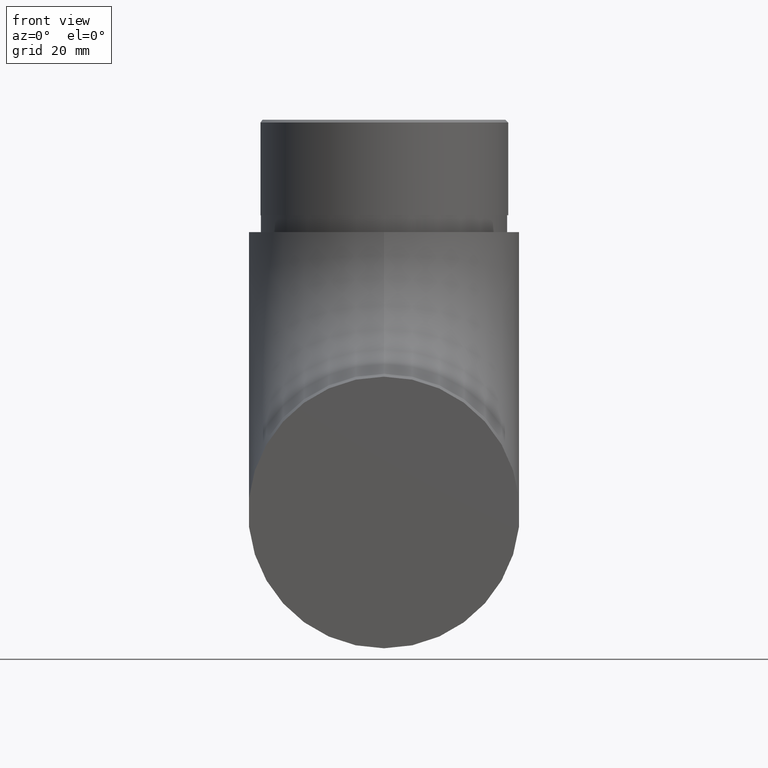
[diagram: clean part render]
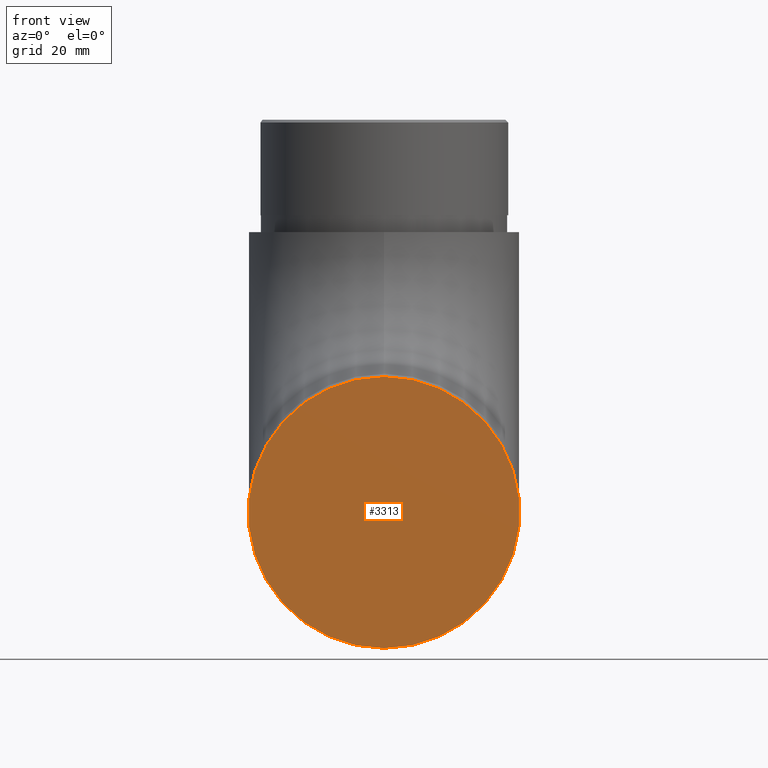
[diagram: same view with one face highlighted and labeled with its STEP entity id]
A machine part, front view. The second image highlights one B-rep face of the part: STEP entity #3313.
In plain terms, the highlighted planar face has unit normal (0, 1, 0).
Its self-contained STEP definition (entity closure, byte-faithful):
#785 = DIRECTION ( 'NONE',  ( 0.0000000000000000000, 1.000000000000000000, 0.0000000000000000000 ) ) ;
#910 = DIRECTION ( 'NONE',  ( 0.0000000000000000000, 0.0000000000000000000, 1.000000000000000000 ) ) ;
#1407 = DIRECTION ( 'NONE',  ( 0.0000000000000000000, -0.0000000000000000000, 1.000000000000000000 ) ) ;
#2171 = VERTEX_POINT ( 'NONE', #7993 ) ;
#2690 = ORIENTED_EDGE ( 'NONE', *, *, #11777, .F. ) ;
#3313 = ADVANCED_FACE ( 'NONE', ( #3714 ), #8213, .F. ) ;
#3336 = CARTESIAN_POINT ( 'NONE',  ( 0.0000000000000000000, 0.0000000000000000000, 0.0000000000000000000 ) ) ;
#3714 = FACE_OUTER_BOUND ( 'NONE', #6095, .T. ) ;
#4476 = CARTESIAN_POINT ( 'NONE',  ( 0.0000000000000000000, 0.0000000000000000000, 0.0000000000000000000 ) ) ;
#6095 = EDGE_LOOP ( 'NONE', ( #2690 ) ) ;
#6581 = AXIS2_PLACEMENT_3D ( 'NONE', #3336, #11156, #1407 ) ;
#7472 = CIRCLE ( 'NONE', #9861, 24.15000000000000600 ) ;
#7993 = CARTESIAN_POINT ( 'NONE',  ( 0.0000000000000000000, 0.0000000000000000000, 24.15000000000000600 ) ) ;
#8213 = PLANE ( 'NONE',  #6581 ) ;
#9861 = AXIS2_PLACEMENT_3D ( 'NONE', #4476, #785, #910 ) ;
#11156 = DIRECTION ( 'NONE',  ( 0.0000000000000000000, 1.000000000000000000, 0.0000000000000000000 ) ) ;
#11777 = EDGE_CURVE ( 'NONE', #2171, #2171, #7472, .T. ) ;